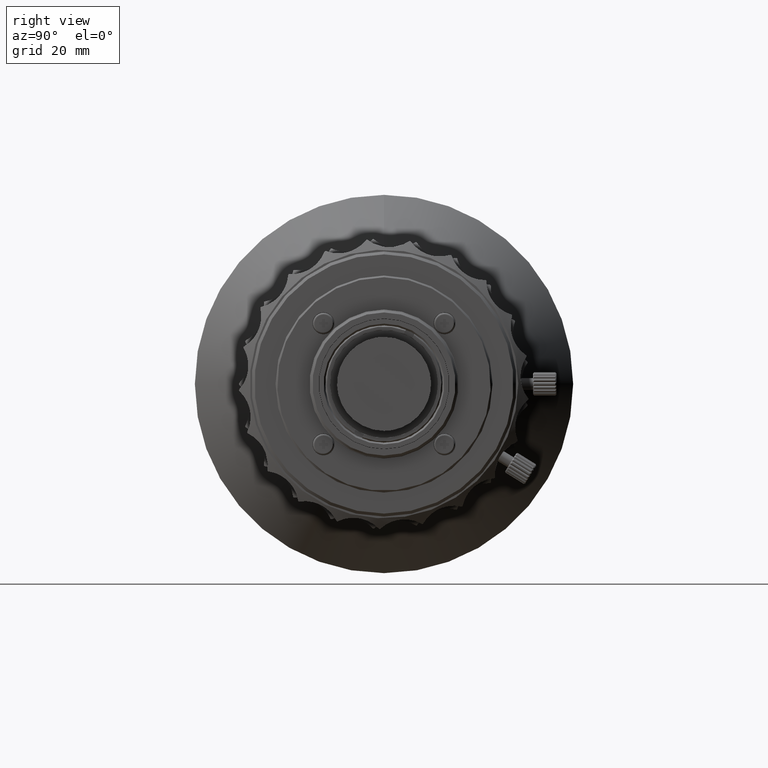
[diagram: clean part render]
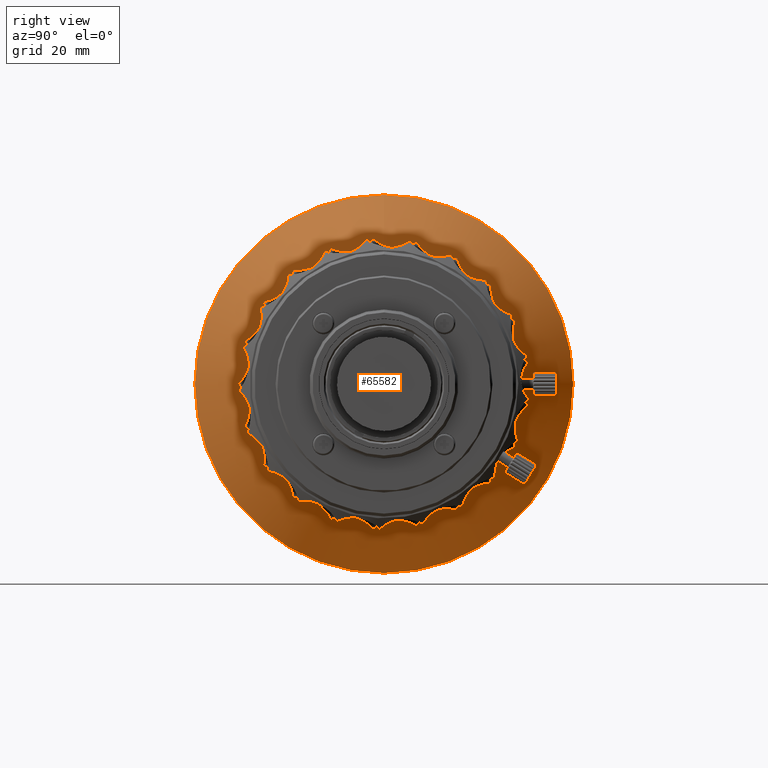
[diagram: same view with one face highlighted and labeled with its STEP entity id]
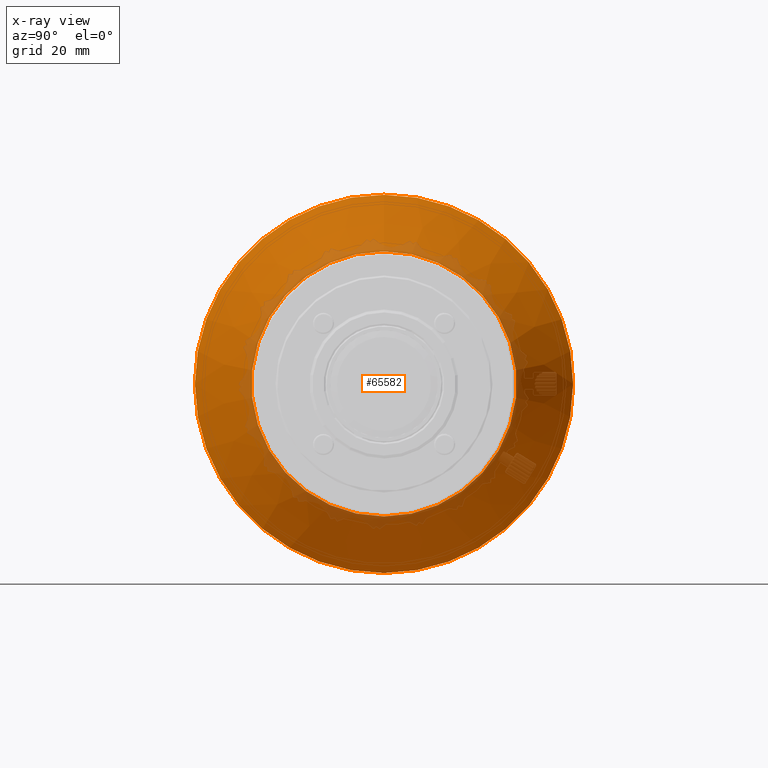
[diagram: x-ray of the same camera — body ghosted, the highlighted face saturated]
A machine part, right view. The second image highlights one B-rep face of the part: STEP entity #65582.
The next image is the same camera in x-ray: the body ghosted, the highlighted face saturated — about 15% of this face is hidden behind the body in this view.
In plain terms, the highlighted conical surface has half-angle 41.389 deg.
Its self-contained STEP definition (entity closure, byte-faithful):
#3504 = EDGE_LOOP ( 'NONE', ( #12548 ) ) ;
#3785 = EDGE_CURVE ( 'NONE', #19669, #19669, #38728, .T. ) ;
#7399 = CARTESIAN_POINT ( 'NONE',  ( -30.92408963958226309, 0.000000000000000000, 32.25000067651262725 ) ) ;
#12548 = ORIENTED_EDGE ( 'NONE', *, *, #81421, .T. ) ;
#13805 = CARTESIAN_POINT ( 'NONE',  ( -19.97408963958244144, 0.000000000000000000, 0.000000000000000000 ) ) ;
#13841 = ORIENTED_EDGE ( 'NONE', *, *, #3785, .T. ) ;
#19669 = VERTEX_POINT ( 'NONE', #71254 ) ;
#19684 = VERTEX_POINT ( 'NONE', #7399 ) ;
#25343 = FACE_OUTER_BOUND ( 'NONE', #3504, .T. ) ;
#30084 = AXIS2_PLACEMENT_3D ( 'NONE', #69312, #31260, #64216 ) ;
#30800 = CIRCLE ( 'NONE', #72627, 32.25000067651262725 ) ;
#31260 = DIRECTION ( 'NONE',  ( -1.000000000000000000, 0.000000000000000000, 0.000000000000000000 ) ) ;
#32075 = DIRECTION ( 'NONE',  ( 1.000000000000000000, -0.000000000000000000, -0.000000000000000000 ) ) ;
#33698 = DIRECTION ( 'NONE',  ( -1.000000000000000000, 0.000000000000000000, 0.000000000000000000 ) ) ;
#34115 = DIRECTION ( 'NONE',  ( 0.000000000000000000, 0.000000000000000000, 1.000000000000000000 ) ) ;
#38728 = CIRCLE ( 'NONE', #41467, 22.59999999999989839 ) ;
#41467 = AXIS2_PLACEMENT_3D ( 'NONE', #13805, #33698, #34115 ) ;
#55777 = CONICAL_SURFACE ( 'NONE', #30084, 32.25000067651262725, 0.7223749760403612719 ) ;
#57448 = FACE_BOUND ( 'NONE', #65725, .T. ) ;
#57851 = DIRECTION ( 'NONE',  ( 0.000000000000000000, 0.000000000000000000, 1.000000000000000000 ) ) ;
#64204 = CARTESIAN_POINT ( 'NONE',  ( -30.92408963958226309, 0.000000000000000000, 0.000000000000000000 ) ) ;
#64216 = DIRECTION ( 'NONE',  ( 0.000000000000000000, 0.000000000000000000, 1.000000000000000000 ) ) ;
#65582 = ADVANCED_FACE ( 'NONE', ( #25343, #57448 ), #55777, .T. ) ;
#65725 = EDGE_LOOP ( 'NONE', ( #13841 ) ) ;
#69312 = CARTESIAN_POINT ( 'NONE',  ( -30.92408963958226309, 0.000000000000000000, 0.000000000000000000 ) ) ;
#71254 = CARTESIAN_POINT ( 'NONE',  ( -19.97408963958244144, 0.000000000000000000, 22.59999999999989839 ) ) ;
#72627 = AXIS2_PLACEMENT_3D ( 'NONE', #64204, #32075, #57851 ) ;
#81421 = EDGE_CURVE ( 'NONE', #19684, #19684, #30800, .T. ) ;